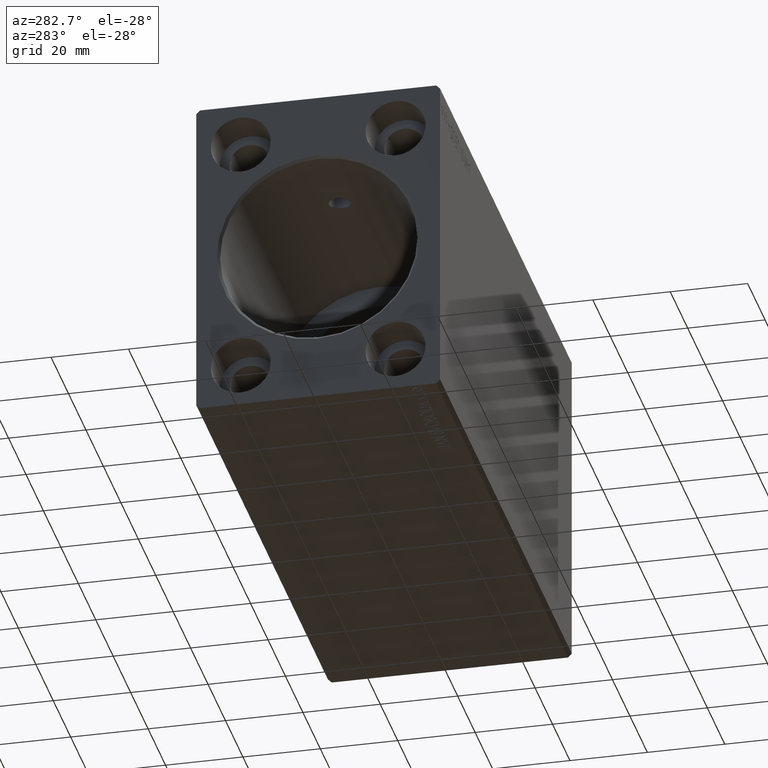
[diagram: clean part render]
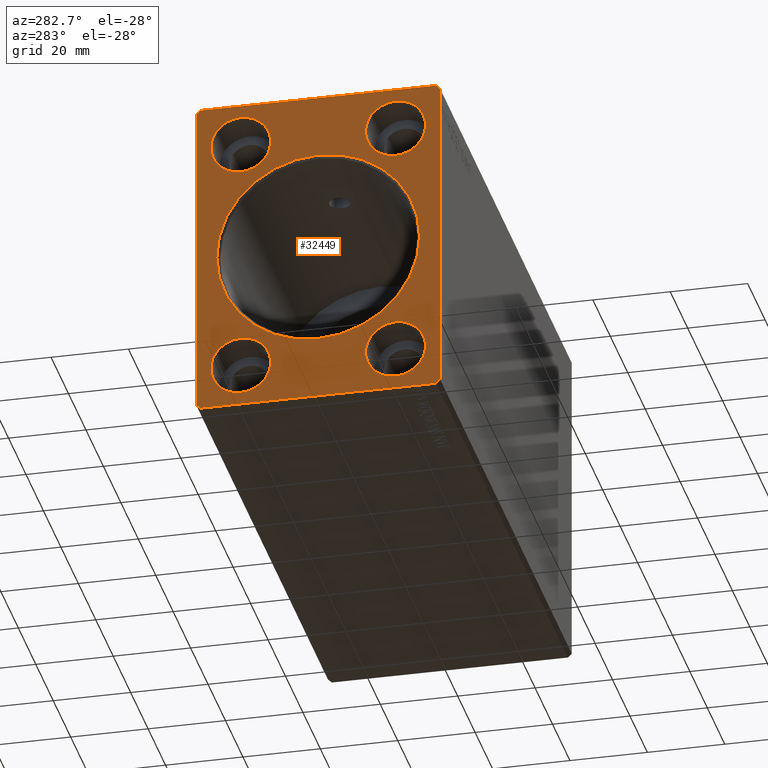
[diagram: same view with one face highlighted and labeled with its STEP entity id]
A machine part, auxiliary view. The second image highlights one B-rep face of the part: STEP entity #32449.
In plain terms, the highlighted planar face has unit normal (1, 0, 0).
Its self-contained STEP definition (entity closure, byte-faithful):
#79 = VERTEX_POINT ( 'NONE', #18223 ) ;
#147 = EDGE_CURVE ( 'NONE', #41651, #38813, #21515, .T. ) ;
#191 = CARTESIAN_POINT ( 'NONE',  ( 0.000000000000000000, 0.000000000000000000, 0.000000000000000000 ) ) ;
#301 = DIRECTION ( 'NONE',  ( 0.000000000000000000, 0.000000000000000000, -1.000000000000000000 ) ) ;
#380 = DIRECTION ( 'NONE',  ( 0.000000000000000000, 0.000000000000000000, 1.000000000000000000 ) ) ;
#495 = AXIS2_PLACEMENT_3D ( 'NONE', #33271, #4341, #17419 ) ;
#810 = DIRECTION ( 'NONE',  ( -1.000000000000000000, 0.000000000000000000, 0.000000000000000000 ) ) ;
#874 = ORIENTED_EDGE ( 'NONE', *, *, #37140, .F. ) ;
#1579 = CARTESIAN_POINT ( 'NONE',  ( 0.000000000000000000, 30.50000000000001421, 42.49999999999999289 ) ) ;
#2137 = ORIENTED_EDGE ( 'NONE', *, *, #3531, .T. ) ;
#2215 = EDGE_CURVE ( 'NONE', #23086, #35016, #34818, .T. ) ;
#2562 = CARTESIAN_POINT ( 'NONE',  ( 0.000000000000000000, 0.000000000000000000, 0.000000000000000000 ) ) ;
#2783 = VECTOR ( 'NONE', #15018, 1000.000000000000000 ) ;
#2956 = CIRCLE ( 'NONE', #29576, 26.20000000000005613 ) ;
#2976 = VERTEX_POINT ( 'NONE', #41213 ) ;
#3043 = EDGE_CURVE ( 'NONE', #79, #9517, #39045, .T. ) ;
#3116 = CARTESIAN_POINT ( 'NONE',  ( 0.000000000000000000, 31.50000000000001421, -41.50000000000000711 ) ) ;
#3391 = VERTEX_POINT ( 'NONE', #21573 ) ;
#3452 = ORIENTED_EDGE ( 'NONE', *, *, #35066, .F. ) ;
#3531 = EDGE_CURVE ( 'NONE', #29755, #12510, #13613, .T. ) ;
#3752 = DIRECTION ( 'NONE',  ( 0.000000000000000000, 0.000000000000000000, -1.000000000000000000 ) ) ;
#3993 = VERTEX_POINT ( 'NONE', #24884 ) ;
#4023 = VECTOR ( 'NONE', #17961, 999.9999999999998863 ) ;
#4050 = FACE_OUTER_BOUND ( 'NONE', #15113, .T. ) ;
#4341 = DIRECTION ( 'NONE',  ( -1.000000000000000000, 0.000000000000000000, 0.000000000000000000 ) ) ;
#4427 = EDGE_LOOP ( 'NONE', ( #33158, #37820 ) ) ;
#4598 = EDGE_CURVE ( 'NONE', #12399, #23086, #34641, .T. ) ;
#4669 = EDGE_CURVE ( 'NONE', #9517, #17170, #8920, .T. ) ;
#4948 = ORIENTED_EDGE ( 'NONE', *, *, #19784, .F. ) ;
#5470 = CARTESIAN_POINT ( 'NONE',  ( 0.000000000000000000, 31.50000000000001421, -41.50000000000000711 ) ) ;
#5556 = LINE ( 'NONE', #11793, #2783 ) ;
#5617 = LINE ( 'NONE', #1579, #10514 ) ;
#5927 = VERTEX_POINT ( 'NONE', #27772 ) ;
#5976 = DIRECTION ( 'NONE',  ( 0.000000000000000000, 0.000000000000000000, -1.000000000000000000 ) ) ;
#6112 = LINE ( 'NONE', #19194, #14642 ) ;
#6411 = DIRECTION ( 'NONE',  ( 0.000000000000000000, 0.000000000000000000, -1.000000000000000000 ) ) ;
#7040 = CARTESIAN_POINT ( 'NONE',  ( 0.000000000000000000, -19.99999999999999645, -31.49999999999998579 ) ) ;
#7546 = AXIS2_PLACEMENT_3D ( 'NONE', #25139, #38200, #28144 ) ;
#7671 = ORIENTED_EDGE ( 'NONE', *, *, #4669, .F. ) ;
#7740 = VERTEX_POINT ( 'NONE', #19423 ) ;
#8099 = CARTESIAN_POINT ( 'NONE',  ( 0.000000000000000000, 30.50000000000001776, -42.50000000000000711 ) ) ;
#8177 = EDGE_CURVE ( 'NONE', #5927, #25462, #31481, .T. ) ;
#8847 = EDGE_CURVE ( 'NONE', #25462, #5927, #19155, .T. ) ;
#8897 = AXIS2_PLACEMENT_3D ( 'NONE', #18980, #32043, #35465 ) ;
#8920 = LINE ( 'NONE', #13365, #24554 ) ;
#9204 = CARTESIAN_POINT ( 'NONE',  ( 0.000000000000000000, 31.50000000000001421, 41.49999999999999289 ) ) ;
#9517 = VERTEX_POINT ( 'NONE', #36650 ) ;
#9834 = FACE_BOUND ( 'NONE', #39449, .T. ) ;
#10274 = FACE_BOUND ( 'NONE', #37411, .T. ) ;
#10514 = VECTOR ( 'NONE', #34557, 1000.000000000000000 ) ;
#11384 = EDGE_CURVE ( 'NONE', #17170, #12399, #5556, .T. ) ;
#11467 = VECTOR ( 'NONE', #28705, 1000.000000000000114 ) ;
#11793 = CARTESIAN_POINT ( 'NONE',  ( 0.000000000000000000, -30.50000000000000711, -42.50000000000000711 ) ) ;
#12399 = VERTEX_POINT ( 'NONE', #40442 ) ;
#12448 = CIRCLE ( 'NONE', #36404, 26.20000000000005613 ) ;
#12510 = VERTEX_POINT ( 'NONE', #22339 ) ;
#12692 = CIRCLE ( 'NONE', #16840, 7.750000000000000000 ) ;
#13047 = FACE_BOUND ( 'NONE', #4427, .T. ) ;
#13151 = VERTEX_POINT ( 'NONE', #25512 ) ;
#13365 = CARTESIAN_POINT ( 'NONE',  ( 0.000000000000000000, -31.50000000000000000, -41.50000000000000711 ) ) ;
#13613 = CIRCLE ( 'NONE', #35479, 7.750000000000000000 ) ;
#13630 = DIRECTION ( 'NONE',  ( 1.000000000000000000, -0.000000000000000000, -0.000000000000000000 ) ) ;
#14562 = CIRCLE ( 'NONE', #37115, 7.750000000000000000 ) ;
#14642 = VECTOR ( 'NONE', #32250, 999.9999999999998863 ) ;
#14668 = ORIENTED_EDGE ( 'NONE', *, *, #41466, .F. ) ;
#15018 = DIRECTION ( 'NONE',  ( 0.000000000000000000, 1.000000000000000000, 0.000000000000000000 ) ) ;
#15113 = EDGE_LOOP ( 'NONE', ( #14668, #26375, #30562, #26067, #7671, #26313, #18787, #4948 ) ) ;
#15426 = EDGE_CURVE ( 'NONE', #12510, #29755, #14562, .T. ) ;
#15698 = ORIENTED_EDGE ( 'NONE', *, *, #8847, .F. ) ;
#16819 = VERTEX_POINT ( 'NONE', #19608 ) ;
#16840 = AXIS2_PLACEMENT_3D ( 'NONE', #7040, #17333, #39608 ) ;
#17170 = VERTEX_POINT ( 'NONE', #20422 ) ;
#17333 = DIRECTION ( 'NONE',  ( 1.000000000000000000, -0.000000000000000000, -0.000000000000000000 ) ) ;
#17419 = DIRECTION ( 'NONE',  ( 0.000000000000000000, 0.000000000000000000, 1.000000000000000000 ) ) ;
#17961 = DIRECTION ( 'NONE',  ( 0.000000000000000000, 0.7071067811865462405, 0.7071067811865489050 ) ) ;
#18208 = AXIS2_PLACEMENT_3D ( 'NONE', #191, #42396, #19915 ) ;
#18223 = CARTESIAN_POINT ( 'NONE',  ( 0.000000000000000000, -31.50000000000000000, 41.49999999999999289 ) ) ;
#18787 = ORIENTED_EDGE ( 'NONE', *, *, #25596, .F. ) ;
#18922 = EDGE_CURVE ( 'NONE', #7740, #16819, #2956, .T. ) ;
#18980 = CARTESIAN_POINT ( 'NONE',  ( 0.000000000000000000, -19.99999999999999645, 31.50000000000001421 ) ) ;
#18995 = DIRECTION ( 'NONE',  ( 0.000000000000000000, 0.7071067811865451302, -0.7071067811865500152 ) ) ;
#19155 = CIRCLE ( 'NONE', #8897, 7.750000000000000000 ) ;
#19194 = CARTESIAN_POINT ( 'NONE',  ( 0.000000000000000000, -30.50000000000000355, 42.49999999999999289 ) ) ;
#19423 = CARTESIAN_POINT ( 'NONE',  ( 0.000000000000000000, 3.208574613766072005E-15, -26.20000000000005613 ) ) ;
#19608 = CARTESIAN_POINT ( 'NONE',  ( 0.000000000000000000, 0.000000000000000000, 26.20000000000005613 ) ) ;
#19784 = EDGE_CURVE ( 'NONE', #13151, #3391, #5617, .T. ) ;
#19915 = DIRECTION ( 'NONE',  ( 0.000000000000000000, 0.000000000000000000, -1.000000000000000000 ) ) ;
#20203 = EDGE_CURVE ( 'NONE', #16819, #7740, #12448, .T. ) ;
#20422 = CARTESIAN_POINT ( 'NONE',  ( 0.000000000000000000, -30.50000000000000711, -42.50000000000000711 ) ) ;
#20859 = AXIS2_PLACEMENT_3D ( 'NONE', #35109, #25897, #5976 ) ;
#21515 = CIRCLE ( 'NONE', #20859, 7.750000000000000000 ) ;
#21527 = ORIENTED_EDGE ( 'NONE', *, *, #8177, .F. ) ;
#21573 = CARTESIAN_POINT ( 'NONE',  ( 0.000000000000000000, -30.50000000000000355, 42.49999999999999289 ) ) ;
#22339 = CARTESIAN_POINT ( 'NONE',  ( 0.000000000000000000, 20.00000000000000355, 23.75000000000001421 ) ) ;
#22796 = CARTESIAN_POINT ( 'NONE',  ( 0.000000000000000000, 0.000000000000000000, 0.000000000000000000 ) ) ;
#22884 = CARTESIAN_POINT ( 'NONE',  ( 0.000000000000000000, -19.99999999999999645, -23.74999999999998579 ) ) ;
#23086 = VERTEX_POINT ( 'NONE', #3116 ) ;
#23339 = DIRECTION ( 'NONE',  ( 0.000000000000000000, 0.000000000000000000, -1.000000000000000000 ) ) ;
#23556 = DIRECTION ( 'NONE',  ( 1.000000000000000000, -0.000000000000000000, -0.000000000000000000 ) ) ;
#24112 = CARTESIAN_POINT ( 'NONE',  ( 0.000000000000000000, 20.00000000000000355, 31.50000000000001421 ) ) ;
#24554 = VECTOR ( 'NONE', #18995, 1000.000000000000114 ) ;
#24884 = CARTESIAN_POINT ( 'NONE',  ( 0.000000000000000000, 20.00000000000000355, -23.74999999999998579 ) ) ;
#25139 = CARTESIAN_POINT ( 'NONE',  ( 0.000000000000000000, -19.99999999999999645, 31.50000000000001421 ) ) ;
#25462 = VERTEX_POINT ( 'NONE', #40555 ) ;
#25512 = CARTESIAN_POINT ( 'NONE',  ( 0.000000000000000000, 30.50000000000001421, 42.49999999999999289 ) ) ;
#25596 = EDGE_CURVE ( 'NONE', #3391, #79, #6112, .T. ) ;
#25642 = ORIENTED_EDGE ( 'NONE', *, *, #30871, .T. ) ;
#25897 = DIRECTION ( 'NONE',  ( 1.000000000000000000, -0.000000000000000000, -0.000000000000000000 ) ) ;
#25983 = CARTESIAN_POINT ( 'NONE',  ( 0.000000000000000000, -31.50000000000000000, 41.49999999999999289 ) ) ;
#26067 = ORIENTED_EDGE ( 'NONE', *, *, #11384, .F. ) ;
#26313 = ORIENTED_EDGE ( 'NONE', *, *, #3043, .F. ) ;
#26375 = ORIENTED_EDGE ( 'NONE', *, *, #2215, .F. ) ;
#26422 = AXIS2_PLACEMENT_3D ( 'NONE', #26738, #810, #380 ) ;
#26738 = CARTESIAN_POINT ( 'NONE',  ( 0.000000000000000000, 20.00000000000000355, -31.49999999999998579 ) ) ;
#26827 = ORIENTED_EDGE ( 'NONE', *, *, #147, .T. ) ;
#27772 = CARTESIAN_POINT ( 'NONE',  ( 0.000000000000000000, -19.99999999999999645, 23.75000000000001421 ) ) ;
#28144 = DIRECTION ( 'NONE',  ( 0.000000000000000000, 0.000000000000000000, 1.000000000000000000 ) ) ;
#28522 = CIRCLE ( 'NONE', #495, 7.750000000000000000 ) ;
#28705 = DIRECTION ( 'NONE',  ( 0.000000000000000000, -0.7071067811865474617, 0.7071067811865474617 ) ) ;
#29239 = CIRCLE ( 'NONE', #26422, 7.750000000000000000 ) ;
#29576 = AXIS2_PLACEMENT_3D ( 'NONE', #22796, #32437, #301 ) ;
#29755 = VERTEX_POINT ( 'NONE', #31632 ) ;
#30562 = ORIENTED_EDGE ( 'NONE', *, *, #4598, .F. ) ;
#30871 = EDGE_CURVE ( 'NONE', #38813, #41651, #12692, .T. ) ;
#31481 = CIRCLE ( 'NONE', #7546, 7.750000000000000000 ) ;
#31612 = DIRECTION ( 'NONE',  ( 0.000000000000000000, 0.000000000000000000, 1.000000000000000000 ) ) ;
#31632 = CARTESIAN_POINT ( 'NONE',  ( 0.000000000000000000, 20.00000000000000355, 39.25000000000001421 ) ) ;
#32043 = DIRECTION ( 'NONE',  ( -1.000000000000000000, 0.000000000000000000, 0.000000000000000000 ) ) ;
#32250 = DIRECTION ( 'NONE',  ( 0.000000000000000000, -0.7071067811865462405, -0.7071067811865489050 ) ) ;
#32437 = DIRECTION ( 'NONE',  ( 1.000000000000000000, 0.000000000000000000, 0.000000000000000000 ) ) ;
#32449 = ADVANCED_FACE ( 'NONE', ( #9834, #10274, #13047, #4050, #32974, #39181 ), #32546, .F. ) ;
#32546 = PLANE ( 'NONE',  #18208 ) ;
#32974 = FACE_BOUND ( 'NONE', #39723, .T. ) ;
#33158 = ORIENTED_EDGE ( 'NONE', *, *, #20203, .T. ) ;
#33271 = CARTESIAN_POINT ( 'NONE',  ( 0.000000000000000000, 20.00000000000000355, -31.49999999999998579 ) ) ;
#33954 = VECTOR ( 'NONE', #31612, 1000.000000000000000 ) ;
#34557 = DIRECTION ( 'NONE',  ( 0.000000000000000000, -1.000000000000000000, 0.000000000000000000 ) ) ;
#34641 = LINE ( 'NONE', #8099, #4023 ) ;
#34818 = LINE ( 'NONE', #5470, #33954 ) ;
#34889 = EDGE_LOOP ( 'NONE', ( #2137, #39286 ) ) ;
#34983 = DIRECTION ( 'NONE',  ( 0.000000000000000000, 0.000000000000000000, -1.000000000000000000 ) ) ;
#35016 = VERTEX_POINT ( 'NONE', #40336 ) ;
#35066 = EDGE_CURVE ( 'NONE', #2976, #3993, #28522, .T. ) ;
#35109 = CARTESIAN_POINT ( 'NONE',  ( 0.000000000000000000, -19.99999999999999645, -31.49999999999998579 ) ) ;
#35164 = VECTOR ( 'NONE', #34983, 1000.000000000000000 ) ;
#35465 = DIRECTION ( 'NONE',  ( 0.000000000000000000, 0.000000000000000000, 1.000000000000000000 ) ) ;
#35479 = AXIS2_PLACEMENT_3D ( 'NONE', #24112, #13630, #3752 ) ;
#35979 = DIRECTION ( 'NONE',  ( 1.000000000000000000, 0.000000000000000000, 0.000000000000000000 ) ) ;
#36404 = AXIS2_PLACEMENT_3D ( 'NONE', #2562, #35979, #6411 ) ;
#36650 = CARTESIAN_POINT ( 'NONE',  ( 0.000000000000000000, -31.50000000000000000, -41.50000000000000711 ) ) ;
#37115 = AXIS2_PLACEMENT_3D ( 'NONE', #42400, #23556, #23339 ) ;
#37140 = EDGE_CURVE ( 'NONE', #3993, #2976, #29239, .T. ) ;
#37265 = CARTESIAN_POINT ( 'NONE',  ( 0.000000000000000000, -19.99999999999999645, -39.24999999999998579 ) ) ;
#37411 = EDGE_LOOP ( 'NONE', ( #874, #3452 ) ) ;
#37820 = ORIENTED_EDGE ( 'NONE', *, *, #18922, .T. ) ;
#38139 = LINE ( 'NONE', #9204, #11467 ) ;
#38200 = DIRECTION ( 'NONE',  ( -1.000000000000000000, 0.000000000000000000, 0.000000000000000000 ) ) ;
#38813 = VERTEX_POINT ( 'NONE', #22884 ) ;
#39045 = LINE ( 'NONE', #25983, #35164 ) ;
#39181 = FACE_BOUND ( 'NONE', #34889, .T. ) ;
#39286 = ORIENTED_EDGE ( 'NONE', *, *, #15426, .T. ) ;
#39449 = EDGE_LOOP ( 'NONE', ( #15698, #21527 ) ) ;
#39608 = DIRECTION ( 'NONE',  ( 0.000000000000000000, 0.000000000000000000, -1.000000000000000000 ) ) ;
#39723 = EDGE_LOOP ( 'NONE', ( #25642, #26827 ) ) ;
#40336 = CARTESIAN_POINT ( 'NONE',  ( 0.000000000000000000, 31.50000000000001421, 41.49999999999999289 ) ) ;
#40442 = CARTESIAN_POINT ( 'NONE',  ( 0.000000000000000000, 30.50000000000001776, -42.50000000000000711 ) ) ;
#40555 = CARTESIAN_POINT ( 'NONE',  ( 0.000000000000000000, -19.99999999999999645, 39.25000000000001421 ) ) ;
#41213 = CARTESIAN_POINT ( 'NONE',  ( 0.000000000000000000, 20.00000000000000355, -39.24999999999998579 ) ) ;
#41466 = EDGE_CURVE ( 'NONE', #35016, #13151, #38139, .T. ) ;
#41651 = VERTEX_POINT ( 'NONE', #37265 ) ;
#42396 = DIRECTION ( 'NONE',  ( 1.000000000000000000, 0.000000000000000000, 0.000000000000000000 ) ) ;
#42400 = CARTESIAN_POINT ( 'NONE',  ( 0.000000000000000000, 20.00000000000000355, 31.50000000000001421 ) ) ;